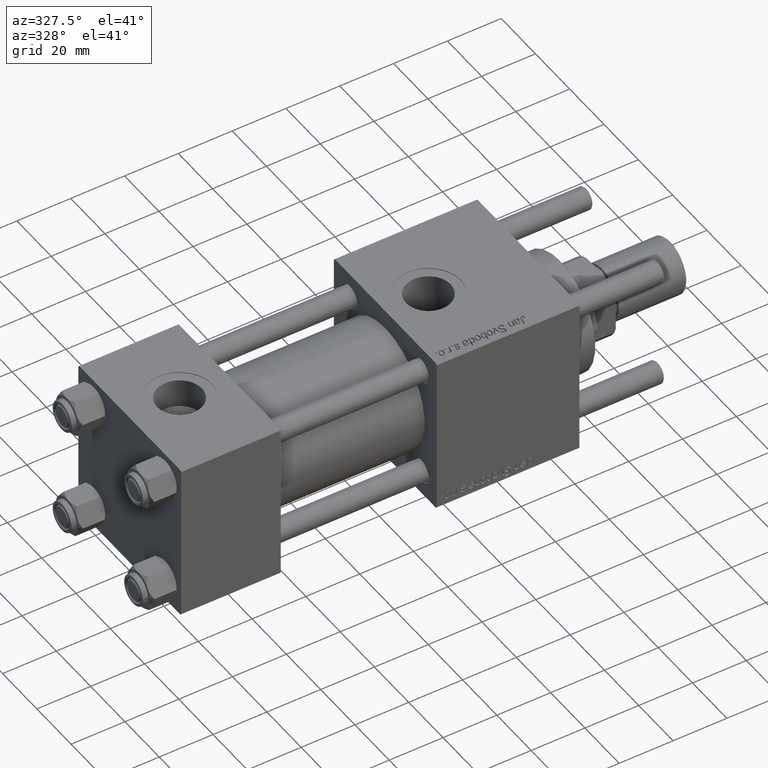
[diagram: clean part render]
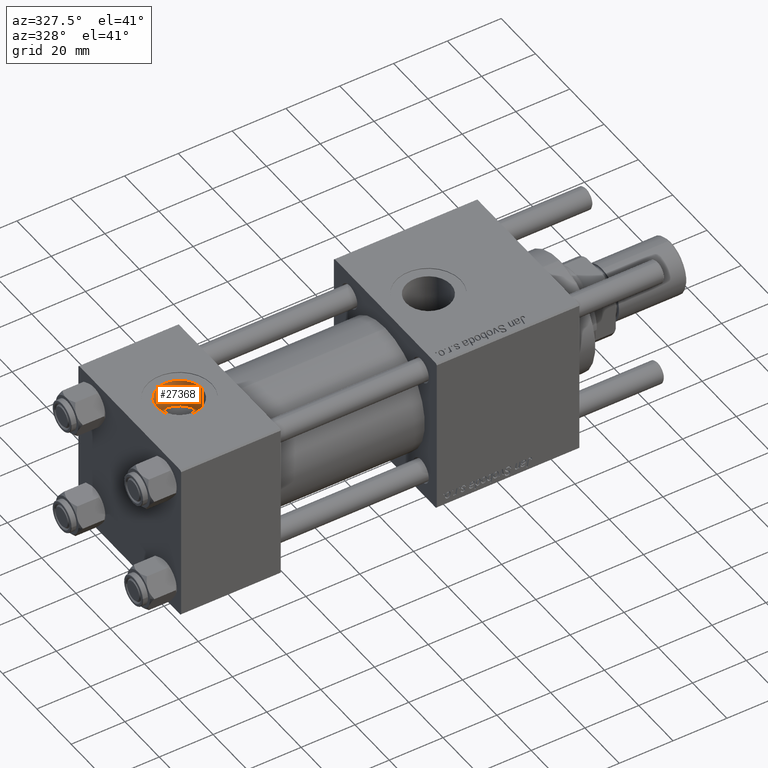
[diagram: same view with one face highlighted and labeled with its STEP entity id]
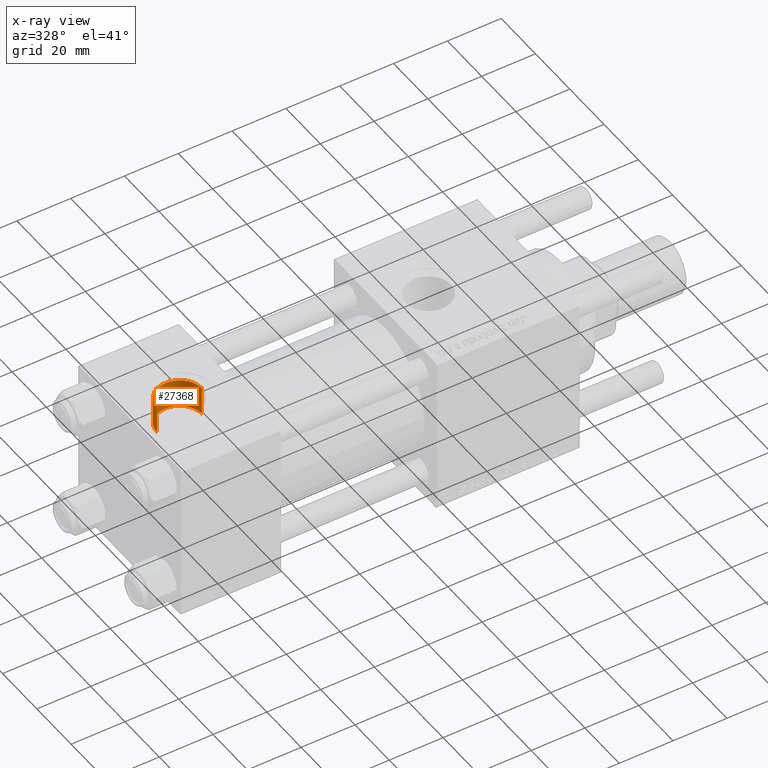
[diagram: x-ray of the same camera — body ghosted, the highlighted face saturated]
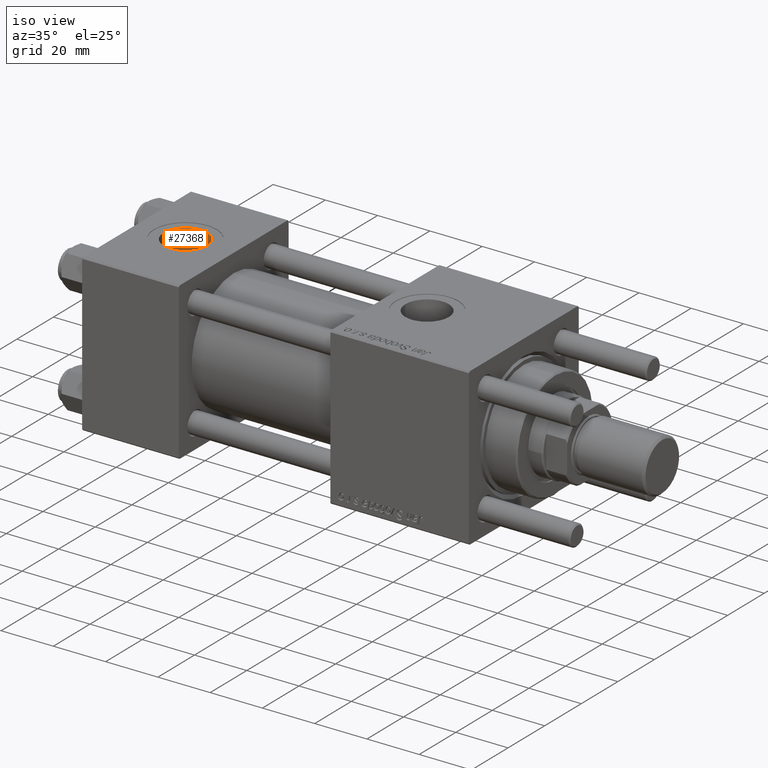
[diagram: same view with one face highlighted and labeled with its STEP entity id]
A machine part, auxiliary view. The second image highlights one B-rep face of the part: STEP entity #27368.
The next image is the same camera in x-ray: the body ghosted, the highlighted face saturated — about 0% of this face is hidden behind the body in this view.
A second angle (iso view) of the same face is appended — the face is thin or edge-on in the first view.
In plain terms, the highlighted cylindrical surface (edge-blend (fillet) strip) has radius 8.33 mm, axis along (0, 0, 1).
Its self-contained STEP definition (entity closure, byte-faithful):
#5146 = EDGE_CURVE ( 'NONE', #54093, #6295, #55241, .T. ) ;
#5271 = EDGE_CURVE ( 'NONE', #56857, #11178, #49110, .T. ) ;
#6295 = VERTEX_POINT ( 'NONE', #25039 ) ;
#9428 = CARTESIAN_POINT ( 'NONE',  ( 10.16999999999999638, -2.449316168263869821E-15, 19.19999999999999574 ) ) ;
#10390 = ORIENTED_EDGE ( 'NONE', *, *, #5271, .F. ) ;
#11178 = VERTEX_POINT ( 'NONE', #18620 ) ;
#12974 = DIRECTION ( 'NONE',  ( 0.000000000000000000, 0.000000000000000000, 1.000000000000000000 ) ) ;
#14704 = EDGE_LOOP ( 'NONE', ( #10390, #48072, #17982, #23178 ) ) ;
#15135 = CYLINDRICAL_SURFACE ( 'NONE', #52345, 8.330000000000000071 ) ;
#15534 = DIRECTION ( 'NONE',  ( -0.000000000000000000, -0.000000000000000000, 1.000000000000000000 ) ) ;
#15994 = DIRECTION ( 'NONE',  ( 1.000000000000000000, 0.000000000000000000, 0.000000000000000000 ) ) ;
#17982 = ORIENTED_EDGE ( 'NONE', *, *, #5146, .T. ) ;
#18049 = CIRCLE ( 'NONE', #39360, 8.330000000000000071 ) ;
#18620 = CARTESIAN_POINT ( 'NONE',  ( 10.16999999999999638, -2.449316168263869821E-15, 29.79999999999999716 ) ) ;
#19773 = FACE_OUTER_BOUND ( 'NONE', #14704, .T. ) ;
#21139 = CARTESIAN_POINT ( 'NONE',  ( 26.82999999999999829, -3.469446951953614978E-15, 19.19999999999999574 ) ) ;
#21347 = DIRECTION ( 'NONE',  ( 0.000000000000000000, 0.000000000000000000, 1.000000000000000000 ) ) ;
#23178 = ORIENTED_EDGE ( 'NONE', *, *, #35875, .T. ) ;
#25039 = CARTESIAN_POINT ( 'NONE',  ( 26.82999999999999829, -3.469446951953614978E-15, 29.79999999999999716 ) ) ;
#26792 = EDGE_CURVE ( 'NONE', #54093, #56857, #18049, .T. ) ;
#27095 = DIRECTION ( 'NONE',  ( -0.000000000000000000, -0.000000000000000000, 1.000000000000000000 ) ) ;
#27368 = ADVANCED_FACE ( 'NONE', ( #19773 ), #15135, .F. ) ;
#27464 = CIRCLE ( 'NONE', #38566, 8.330000000000000071 ) ;
#29179 = DIRECTION ( 'NONE',  ( 1.000000000000000000, 0.000000000000000000, 0.000000000000000000 ) ) ;
#30639 = DIRECTION ( 'NONE',  ( 1.000000000000000000, 0.000000000000000000, 0.000000000000000000 ) ) ;
#33415 = VECTOR ( 'NONE', #15534, 1000.000000000000000 ) ;
#33532 = CARTESIAN_POINT ( 'NONE',  ( 18.50000000000000000, -3.469446951953614978E-15, 19.19999999999999574 ) ) ;
#33956 = CARTESIAN_POINT ( 'NONE',  ( 18.50000000000000000, -3.469446951953614978E-15, 19.19999999999999574 ) ) ;
#35875 = EDGE_CURVE ( 'NONE', #6295, #11178, #27464, .T. ) ;
#37111 = CARTESIAN_POINT ( 'NONE',  ( 10.16999999999999638, -2.449316168263869821E-15, 19.19999999999999574 ) ) ;
#37455 = DIRECTION ( 'NONE',  ( -0.000000000000000000, -0.000000000000000000, 1.000000000000000000 ) ) ;
#38058 = VECTOR ( 'NONE', #27095, 1000.000000000000000 ) ;
#38566 = AXIS2_PLACEMENT_3D ( 'NONE', #57296, #12974, #30639 ) ;
#39360 = AXIS2_PLACEMENT_3D ( 'NONE', #33532, #21347, #29179 ) ;
#42198 = CARTESIAN_POINT ( 'NONE',  ( 26.82999999999999829, -3.469446951953614978E-15, 19.19999999999999574 ) ) ;
#48072 = ORIENTED_EDGE ( 'NONE', *, *, #26792, .F. ) ;
#49110 = LINE ( 'NONE', #9428, #38058 ) ;
#52345 = AXIS2_PLACEMENT_3D ( 'NONE', #33956, #37455, #15994 ) ;
#54093 = VERTEX_POINT ( 'NONE', #21139 ) ;
#55241 = LINE ( 'NONE', #42198, #33415 ) ;
#56857 = VERTEX_POINT ( 'NONE', #37111 ) ;
#57296 = CARTESIAN_POINT ( 'NONE',  ( 18.50000000000000000, -3.469446951953614978E-15, 29.79999999999999716 ) ) ;